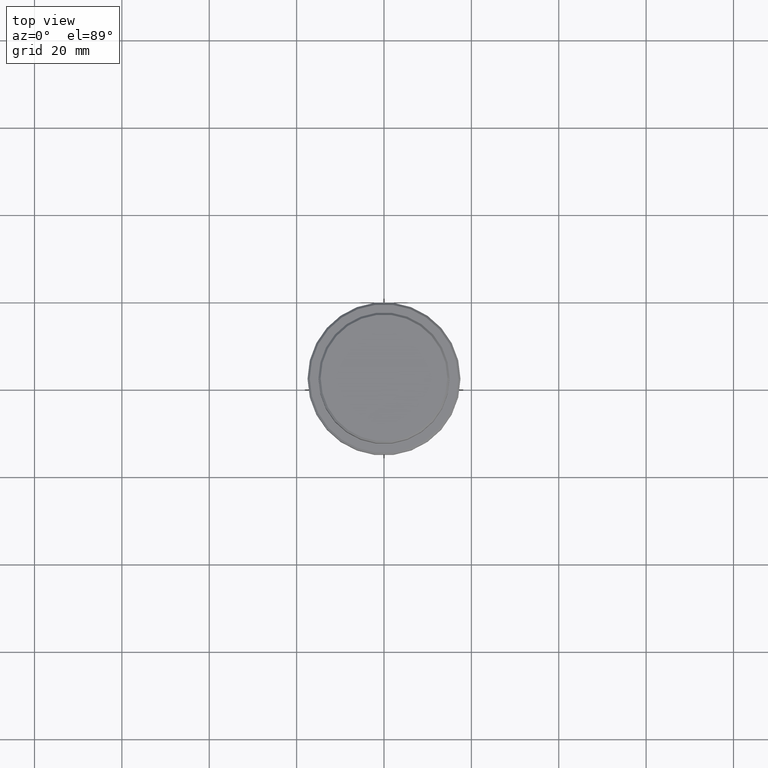
[diagram: clean part render]
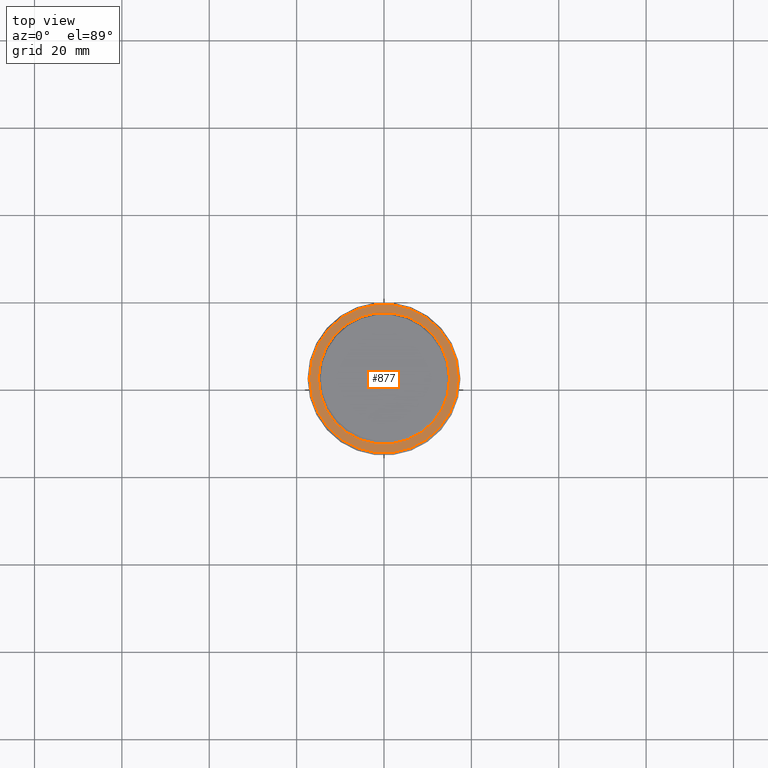
[diagram: same view with one face highlighted and labeled with its STEP entity id]
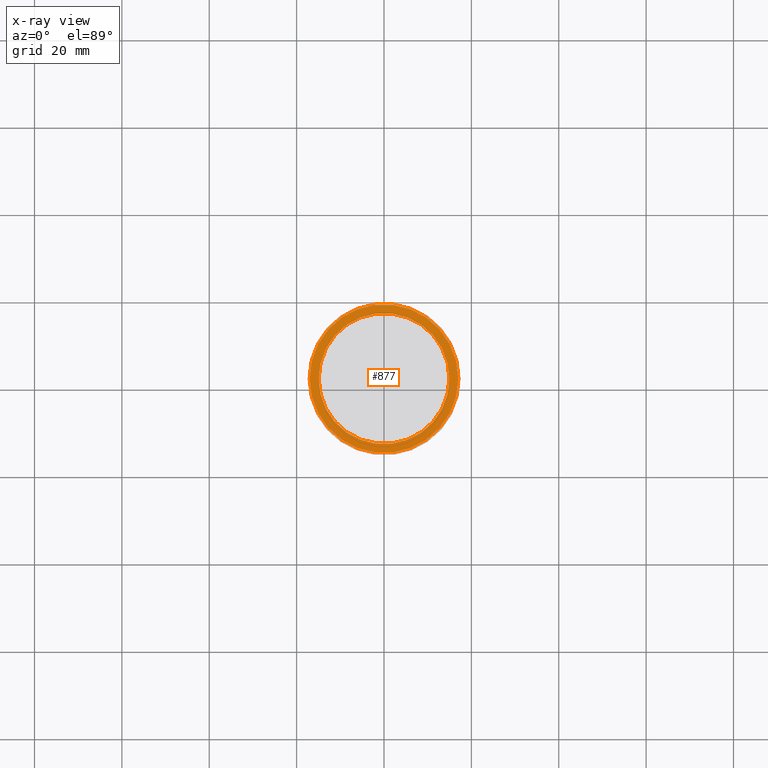
[diagram: x-ray of the same camera — body ghosted, the highlighted face saturated]
A machine part, top view. The second image highlights one B-rep face of the part: STEP entity #877.
The next image is the same camera in x-ray: the body ghosted, the highlighted face saturated — about 0% of this face is hidden behind the body in this view.
In plain terms, the highlighted planar face has unit normal (0, -0, 1).
Its self-contained STEP definition (entity closure, byte-faithful):
#9 = CARTESIAN_POINT ( 'NONE',  ( 14.99999999999999289, 0.000000000000000000, -9.000000000000000000 ) ) ;
#10 = AXIS2_PLACEMENT_3D ( 'NONE', #1374, #424, #1294 ) ;
#34 = CARTESIAN_POINT ( 'NONE',  ( 0.000000000000000000, 0.000000000000000000, -9.000000000000000000 ) ) ;
#121 = AXIS2_PLACEMENT_3D ( 'NONE', #34, #826, #479 ) ;
#143 = ORIENTED_EDGE ( 'NONE', *, *, #1205, .T. ) ;
#211 = AXIS2_PLACEMENT_3D ( 'NONE', #1210, #434, #772 ) ;
#232 = EDGE_CURVE ( 'NONE', #1302, #910, #710, .T. ) ;
#242 = AXIS2_PLACEMENT_3D ( 'NONE', #1183, #842, #403 ) ;
#277 = CARTESIAN_POINT ( 'NONE',  ( -14.99999999999999289, 1.836970198721028800E-15, -9.000000000000000000 ) ) ;
#346 = EDGE_CURVE ( 'NONE', #910, #1302, #640, .T. ) ;
#394 = CIRCLE ( 'NONE', #716, 16.99999999999998579 ) ;
#403 = DIRECTION ( 'NONE',  ( 1.000000000000000000, 0.000000000000000000, 0.000000000000000000 ) ) ;
#424 = DIRECTION ( 'NONE',  ( 0.000000000000000000, 0.000000000000000000, -1.000000000000000000 ) ) ;
#434 = DIRECTION ( 'NONE',  ( 0.000000000000000000, -0.000000000000000000, 1.000000000000000000 ) ) ;
#479 = DIRECTION ( 'NONE',  ( 1.000000000000000000, 0.000000000000000000, 0.000000000000000000 ) ) ;
#552 = EDGE_CURVE ( 'NONE', #1021, #1247, #889, .T. ) ;
#627 = ORIENTED_EDGE ( 'NONE', *, *, #346, .T. ) ;
#640 = CIRCLE ( 'NONE', #10, 14.99999999999999289 ) ;
#674 = ORIENTED_EDGE ( 'NONE', *, *, #552, .T. ) ;
#710 = CIRCLE ( 'NONE', #121, 14.99999999999999289 ) ;
#716 = AXIS2_PLACEMENT_3D ( 'NONE', #1258, #719, #1025 ) ;
#719 = DIRECTION ( 'NONE',  ( -0.000000000000000000, -0.000000000000000000, 1.000000000000000000 ) ) ;
#772 = DIRECTION ( 'NONE',  ( 1.000000000000000000, 0.000000000000000000, 0.000000000000000000 ) ) ;
#807 = EDGE_LOOP ( 'NONE', ( #901, #627 ) ) ;
#826 = DIRECTION ( 'NONE',  ( 0.000000000000000000, 0.000000000000000000, -1.000000000000000000 ) ) ;
#842 = DIRECTION ( 'NONE',  ( -0.000000000000000000, -0.000000000000000000, 1.000000000000000000 ) ) ;
#863 = CARTESIAN_POINT ( 'NONE',  ( -16.99999999999998579, 0.000000000000000000, -9.000000000000000000 ) ) ;
#877 = ADVANCED_FACE ( 'NONE', ( #1153, #1054 ), #1406, .T. ) ;
#889 = CIRCLE ( 'NONE', #242, 16.99999999999998579 ) ;
#901 = ORIENTED_EDGE ( 'NONE', *, *, #232, .T. ) ;
#910 = VERTEX_POINT ( 'NONE', #277 ) ;
#1021 = VERTEX_POINT ( 'NONE', #1185 ) ;
#1025 = DIRECTION ( 'NONE',  ( 1.000000000000000000, 0.000000000000000000, 0.000000000000000000 ) ) ;
#1054 = FACE_BOUND ( 'NONE', #807, .T. ) ;
#1153 = FACE_OUTER_BOUND ( 'NONE', #1316, .T. ) ;
#1183 = CARTESIAN_POINT ( 'NONE',  ( 0.000000000000000000, 0.000000000000000000, -9.000000000000000000 ) ) ;
#1185 = CARTESIAN_POINT ( 'NONE',  ( 16.99999999999998579, 2.112515728529183278E-15, -9.000000000000000000 ) ) ;
#1205 = EDGE_CURVE ( 'NONE', #1247, #1021, #394, .T. ) ;
#1210 = CARTESIAN_POINT ( 'NONE',  ( 0.000000000000000000, 14.49999999999999467, -9.000000000000000000 ) ) ;
#1247 = VERTEX_POINT ( 'NONE', #863 ) ;
#1258 = CARTESIAN_POINT ( 'NONE',  ( 0.000000000000000000, 0.000000000000000000, -9.000000000000000000 ) ) ;
#1294 = DIRECTION ( 'NONE',  ( 1.000000000000000000, 0.000000000000000000, 0.000000000000000000 ) ) ;
#1302 = VERTEX_POINT ( 'NONE', #9 ) ;
#1316 = EDGE_LOOP ( 'NONE', ( #143, #674 ) ) ;
#1374 = CARTESIAN_POINT ( 'NONE',  ( 0.000000000000000000, 0.000000000000000000, -9.000000000000000000 ) ) ;
#1406 = PLANE ( 'NONE',  #211 ) ;